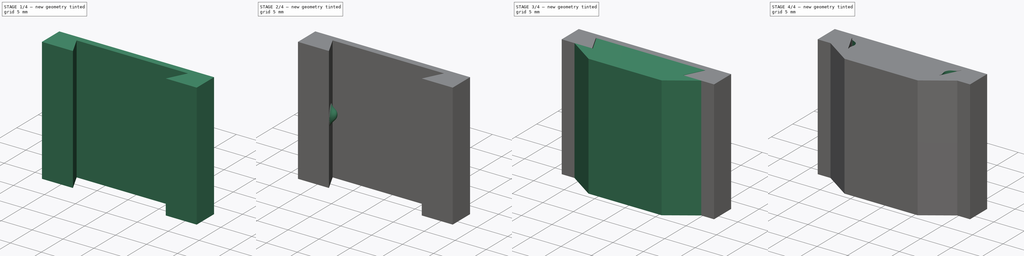
[diagram: build sequence overview — one tinted view per stage of 4, left to right]
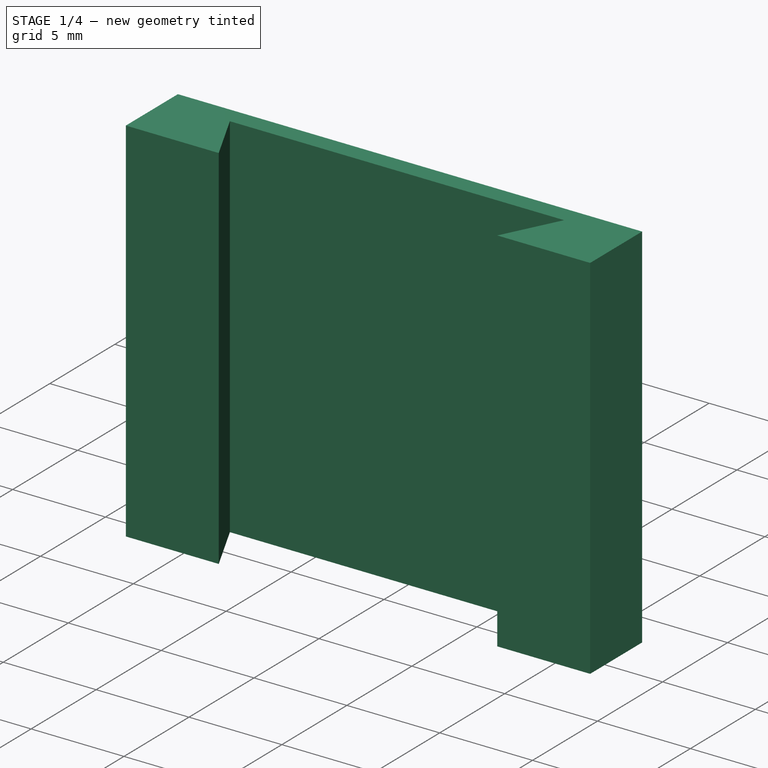
[diagram: stage 1 of 4 — iso view after this stage's code; geometry added in this stage tinted green]
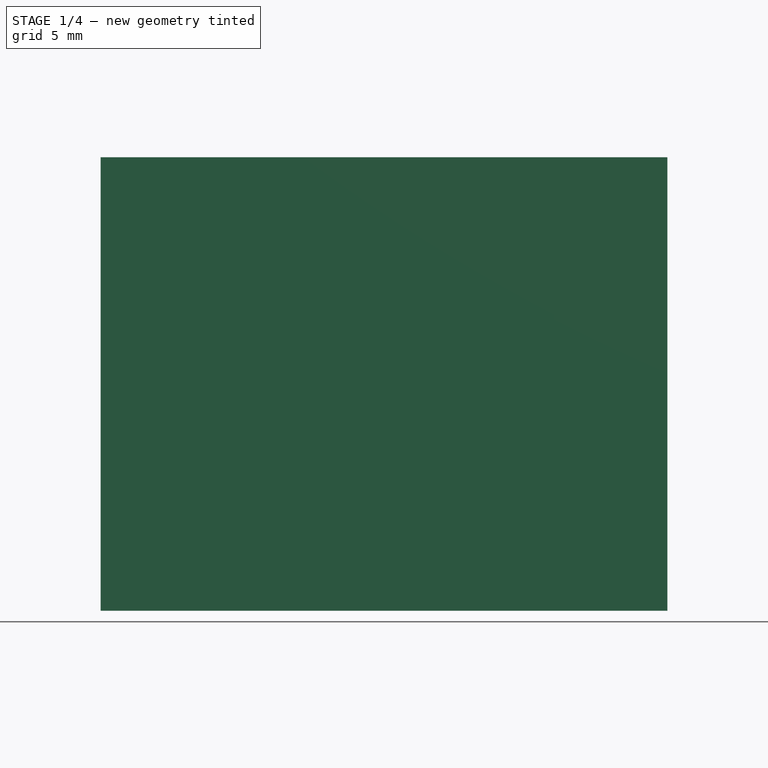
[diagram: stage 1 of 4 — front view after this stage's code; geometry added in this stage tinted green]
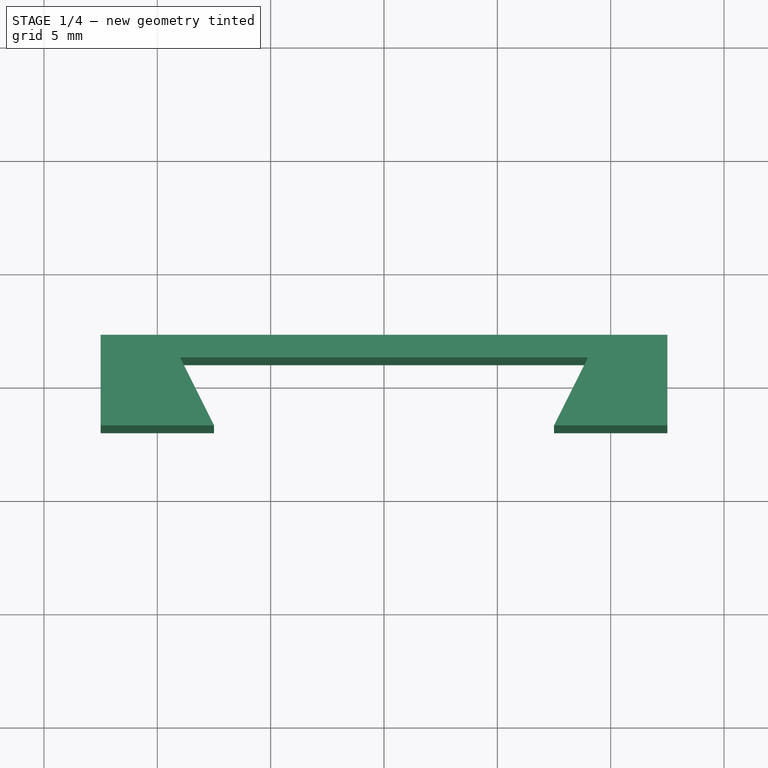
[diagram: stage 1 of 4 — top view after this stage's code; geometry added in this stage tinted green]
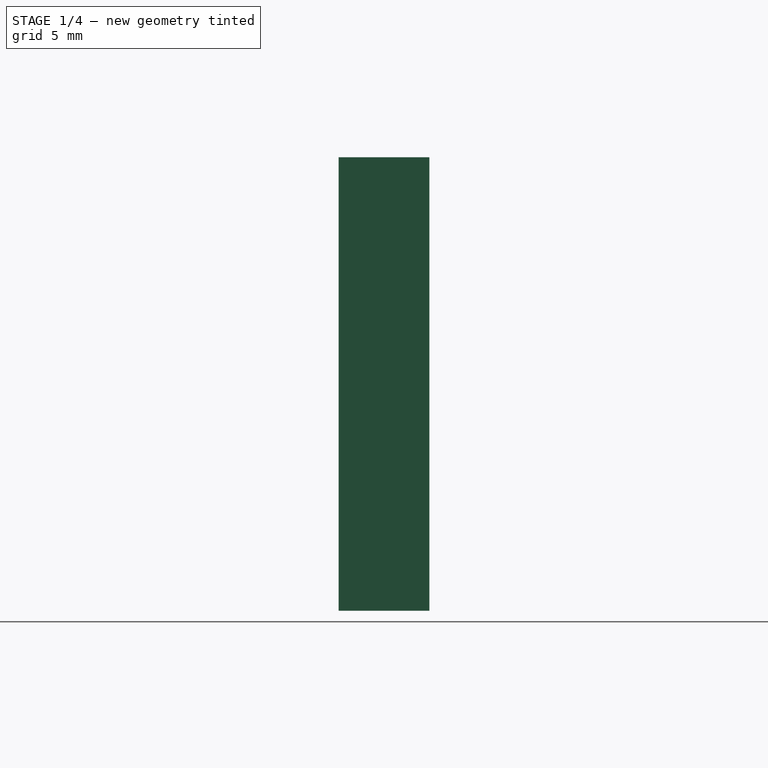
[diagram: stage 1 of 4 — right view after this stage's code; geometry added in this stage tinted green]
FCSTD DOCUMENT  (FreeCAD 0.18R4 (GitTag))
Label: V2_Blocker_Endpoint
License: All rights reserved
LicenseURL: http://en.wikipedia.org/wiki/All_rights_reserved
objects: Sketcher::SketchObject×6, PartDesign::Plane×3, PartDesign::Mirrored×3, PartDesign::Pad×2, PartDesign::Pocket×2, PartDesign::Body×2, PartDesign::Revolution×1, PartDesign::Groove×1
note: 26 computed .brp shape members not serialized (recipe doc carries the construction recipe); baked Part::Feature solids carry a one-line shape summary decoded from their .brp

FEATURE [Sketcher::SketchObject] Sketch
  MapMode = 5
  Support = -> [XY_Plane]
  sketch-geometry (4):
    g0: LineSegment StartX=-12.5 StartY=2 StartZ=0 EndX=12.5 EndY=2 EndZ=0
    g1: LineSegment StartX=12.5 StartY=2 StartZ=0 EndX=12.5 EndY=-2 EndZ=0
    g2: LineSegment StartX=12.5 StartY=-2 StartZ=0 EndX=-12.5 EndY=-2 EndZ=0
    g3: LineSegment StartX=-12.5 StartY=-2 StartZ=0 EndX=-12.5 EndY=2 EndZ=0
  constraints (10):
    c: Coincident(g0,g1)
    c: Coincident(g1,g2)
    c: Coincident(g2,g3)
    c: Coincident(g3,g0)
    c: Horizontal(g2)
    c: Vertical(g1)
    c: DistanceY(g1,g1) = 4
    c: DistanceX(g0,g0) = 25
    c: Symmetric(g2,g0,g-1)
    c: Symmetric(g0,g0,g-2)
FEATURE [PartDesign::Pad] Pad
  Length = 20
  Length2 = 100
  Profile = -> Sketch
  Type = 0
FEATURE [Sketcher::SketchObject] Sketch001
  MapMode = 5
  Placement = pos=(0,0,20) rot=(0,0,1;0rad)
  Support = -> [Pad]
  sketch-geometry (4):
    g0: LineSegment StartX=-9 StartY=1 StartZ=0 EndX=-7.5 EndY=-2 EndZ=0
    g1: LineSegment StartX=-7.5 StartY=-2 StartZ=0 EndX=7.5 EndY=-2 EndZ=0
    g2: LineSegment StartX=7.5 StartY=-2 StartZ=0 EndX=9 EndY=1 EndZ=0
    g3: LineSegment StartX=9 StartY=1 StartZ=0 EndX=-9 EndY=1 EndZ=0
  constraints (11):
    c: Coincident(g0,g1)
    c: Coincident(g1,g2)
    c: Coincident(g2,g3)
    c: Coincident(g3,g0)
    c: Horizontal(g1)
    c: Equal(g2,g0)
    c: DistanceY(g0,g0) = 3
    c: DistanceY(g0,g-1) = 2
    c: Symmetric(g2,g0,g-2)
    c: DistanceX(g3,g3) = 18
    c: DistanceX(g1,g1) = 15
FEATURE [PartDesign::Pocket] Pocket
  BaseFeature = -> Pad
  Length = 20
  Length2 = 100
  Profile = -> Sketch001
  Type = 0
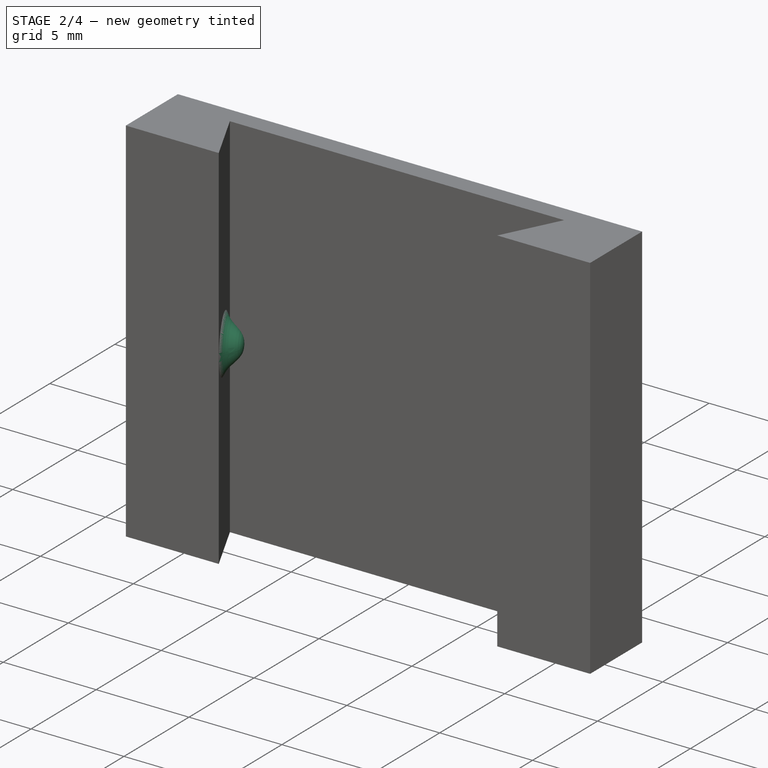
[diagram: stage 2 of 4 — iso view after this stage's code; geometry added in this stage tinted green]
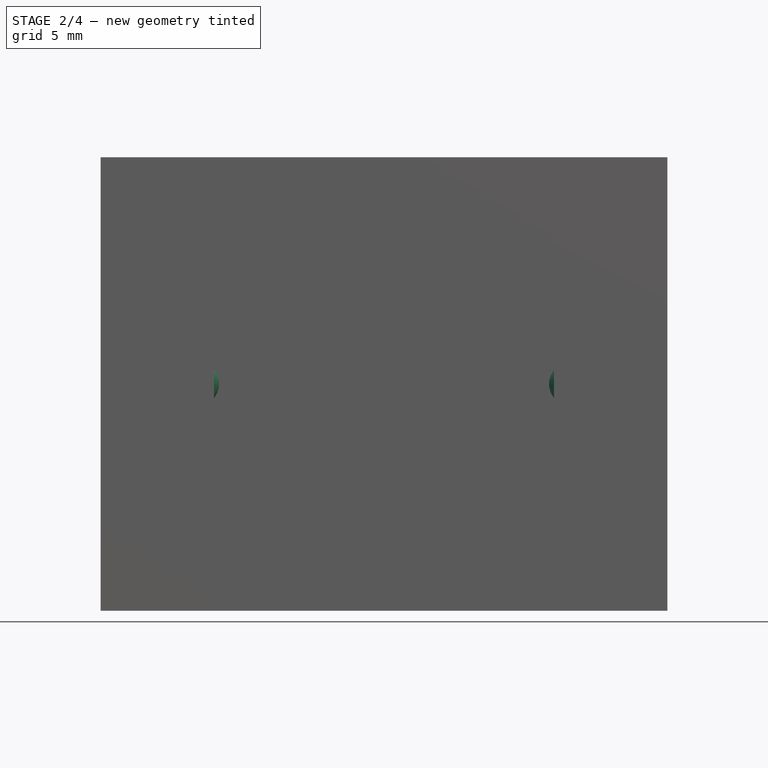
[diagram: stage 2 of 4 — front view after this stage's code; geometry added in this stage tinted green]
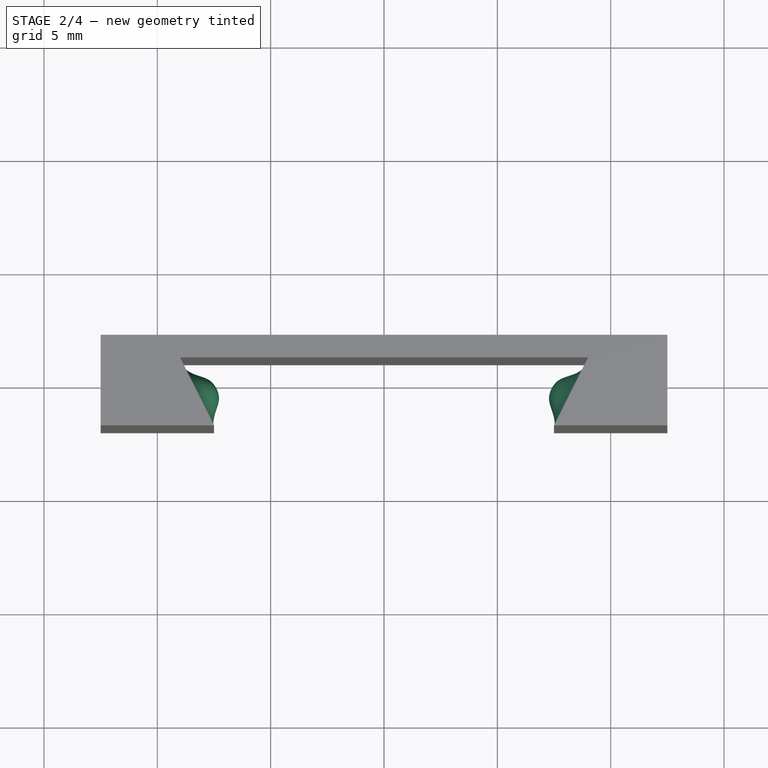
[diagram: stage 2 of 4 — top view after this stage's code; geometry added in this stage tinted green]
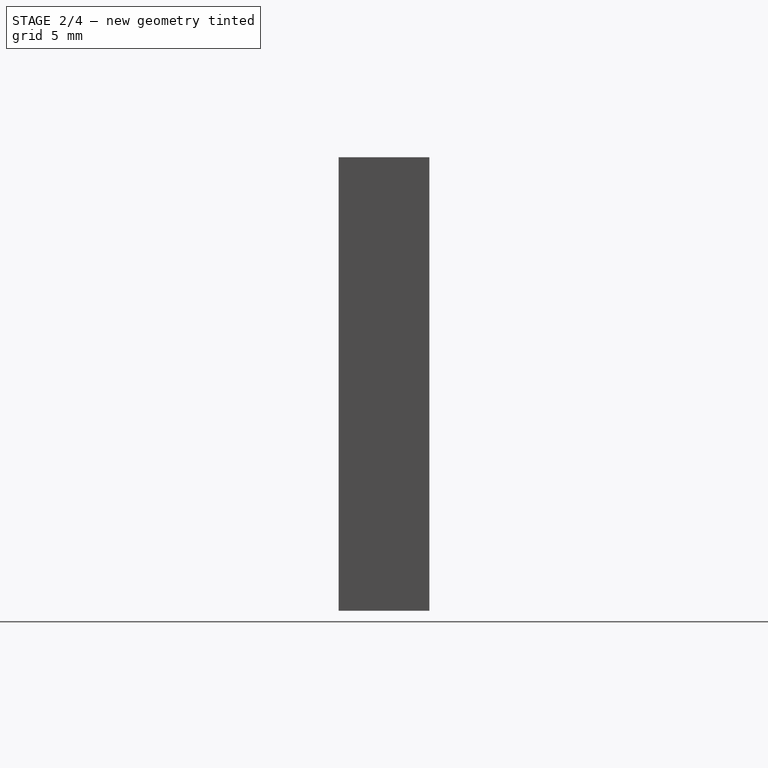
[diagram: stage 2 of 4 — right view after this stage's code; geometry added in this stage tinted green]
FEATURE [PartDesign::Plane] DatumPlane
  AttachmentOffset = pos=(0,10,0) rot=(1,0,0;1.5708rad)
  Length = 35.1021
  MapMode = 5
  Placement = pos=(-6.8,-3.4,10) rot=(0.525731,0.850651,0;3.14159rad)
  ResizeMode = 0
  Support = -> [Pocket]
  Width = 37.3382
FEATURE [Sketcher::SketchObject] Sketch002
  ExternalGeometry = -> [Pocket]
  MapMode = 5
  Placement = pos=(-6.8,-3.4,10) rot=(0.525731,0.850651,0;3.14159rad)
  Support = -> [DatumPlane]
  sketch-geometry (9):
    g0: LineSegment StartX=1.61935 StartY=4.4e-15 StartZ=0 EndX=3.11935 EndY=4.4e-15 EndZ=0
    g1: LineSegment StartX=3.11935 StartY=4.4e-15 StartZ=0 EndX=3.11935 EndY=0.9 EndZ=0
    g2-g5: Circle [constr] x4 (B-spline internal-alignment scaffolding for g6; pole/knot coordinates omitted)
    g6: BSplineCurve PolesCount=4 KnotsCount=2 Degree=3 IsPeriodic=0
    g7: GeomPoint [constr] X=3.11935 Y=0.9 Z=0
    g8: GeomPoint [constr] X=1.61935 Y=4.4e-15 Z=0
  constraints (20):
    c: Horizontal(g0)
    c: Coincident(g0,g1)
    c: Vertical(g1)
    c: DistanceX(g0,g0) = 1.5
    c: DistanceY(g1,g1) = 0.9
    c: Coincident(g6,g1)
    c: Radius(g2) = 0.1
    c: Equal(g2,g3)
    c: Equal(g2,g4)
    c: Equal(g2,g5)
    c: Coincident(g6,g0)
    c: InternalAlignment(g2-g5 -> g6) x4
    c: InternalAlignment(g7,g6)
    c: InternalAlignment(g8,g6)
    c: Horizontal(g3,g1)
    c: Vertical(g4,g3)
    c: DistanceY(g4,g3) = 0.6
    c: DistanceX(g4,g0) = 0.75
    c: DistanceY(g-3,g0) = 0
    c: DistanceX(g0,g-3) = 1.8
FEATURE [PartDesign::Revolution] Revolution
  Angle = 360
  Axis = (0.894427,0.447214,1e-16)
  Base = (-8.19502,-0.609969,10)
  BaseFeature = -> Pocket
  Profile = -> Sketch002
  ReferenceAxis = -> Sketch002 [Edge2]
FEATURE [PartDesign::Body] Body001  label="Connector"
  Group = -> [Sketch004,Pad001,DatumPlane002,Sketch005,Groove,Mirrored,DatumPlane003,Sketch007,Pocket001,Mirrored001]
  Origin = -> Origin001
  Tip = -> Mirrored001
FEATURE [PartDesign::Mirrored] Mirrored002
  BaseFeature = -> Revolution
  MirrorPlane = -> YZ_Plane
  Originals = -> [Revolution]
FEATURE [PartDesign::Body] Body  label="Connector Hole"
  Group = -> [Sketch,Pad,Sketch001,Pocket,DatumPlane,Sketch002,Revolution,Mirrored002]
  Origin = -> Origin
  Tip = -> Mirrored002
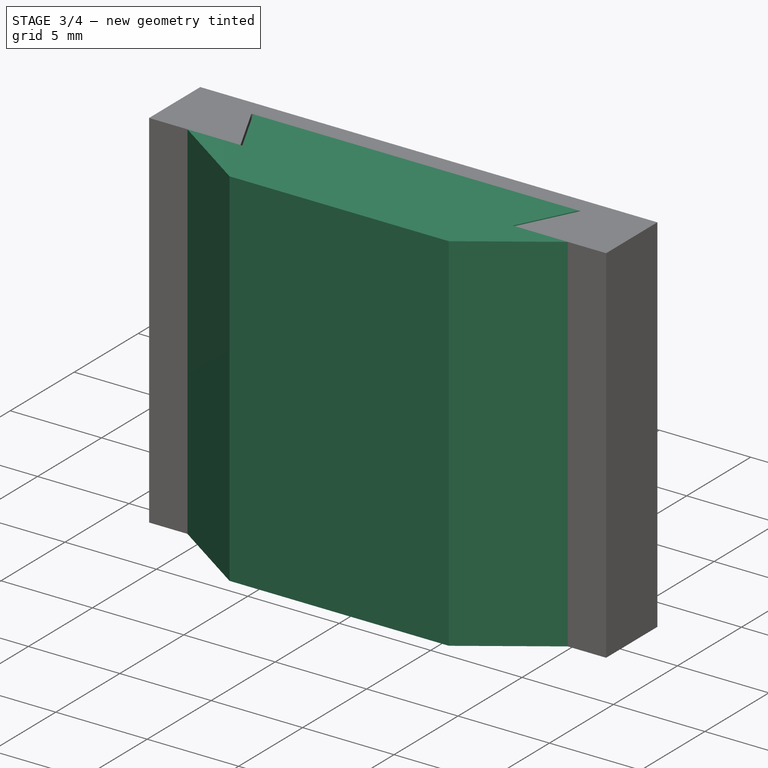
[diagram: stage 3 of 4 — iso view after this stage's code; geometry added in this stage tinted green]
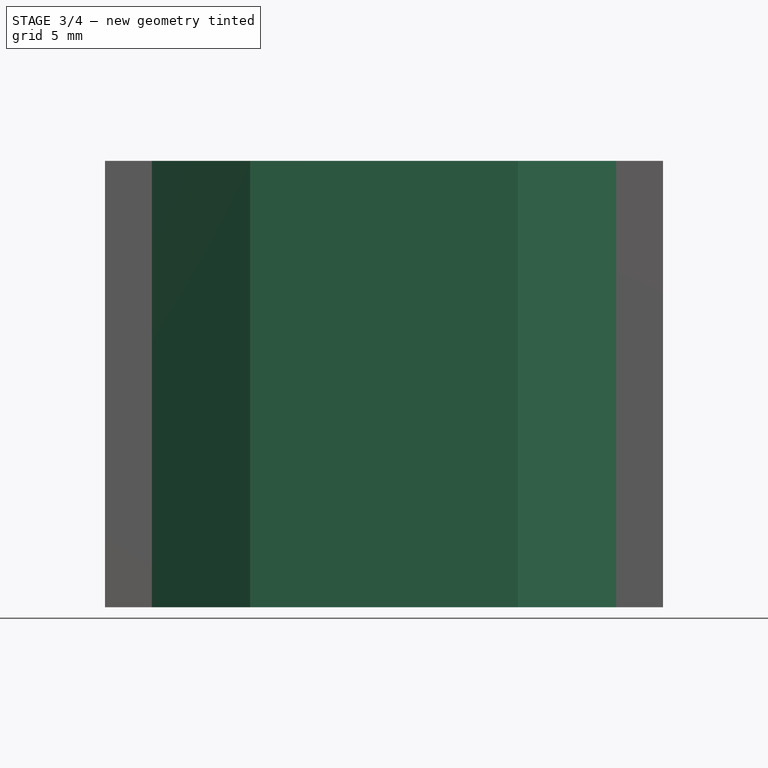
[diagram: stage 3 of 4 — front view after this stage's code; geometry added in this stage tinted green]
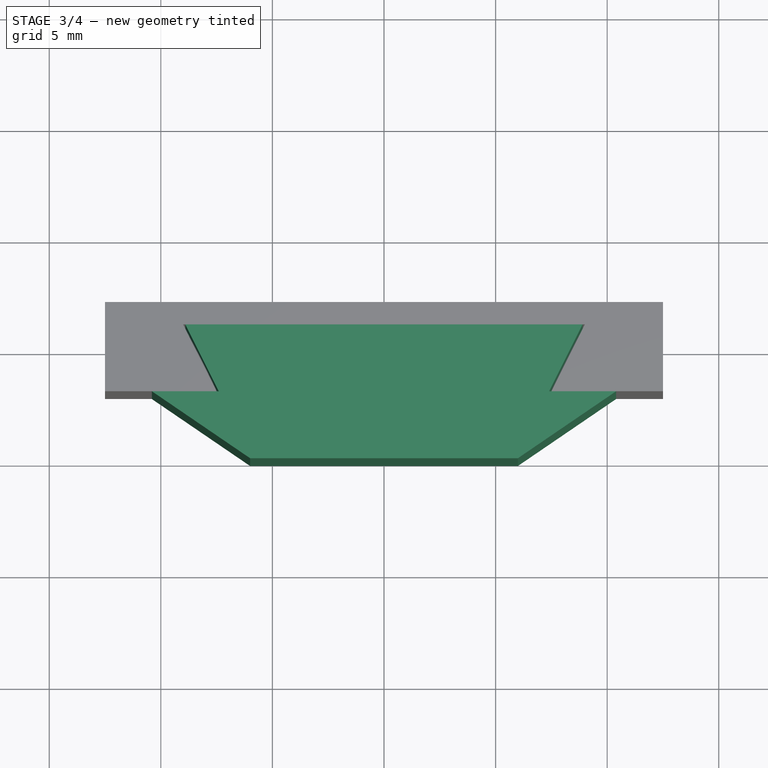
[diagram: stage 3 of 4 — top view after this stage's code; geometry added in this stage tinted green]
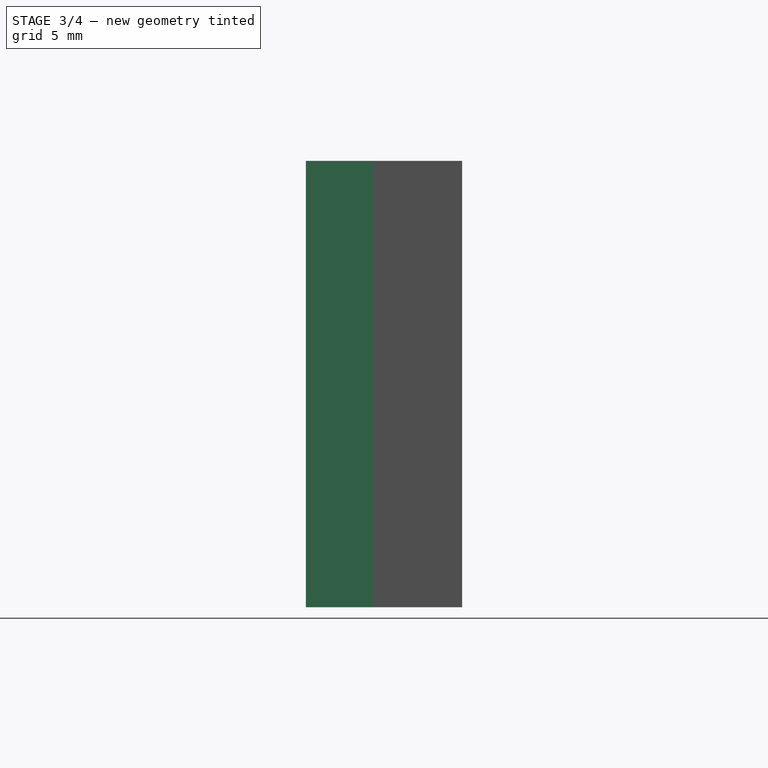
[diagram: stage 3 of 4 — right view after this stage's code; geometry added in this stage tinted green]
FEATURE [Sketcher::SketchObject] Sketch004
  MapMode = 5
  Support = -> [XY_Plane001]
  sketch-geometry (8):
    g0: LineSegment StartX=-8.9 StartY=1 StartZ=0 EndX=-7.4 EndY=-2 EndZ=0
    g1: LineSegment StartX=7.4 StartY=-2 StartZ=0 EndX=8.9 EndY=1 EndZ=0
    g2: LineSegment StartX=8.9 StartY=1 StartZ=0 EndX=-8.9 EndY=1 EndZ=0
    g3: LineSegment StartX=-7.4 StartY=-2 StartZ=0 EndX=-10.4 EndY=-2 EndZ=0
    g4: LineSegment StartX=-10.4 StartY=-2 StartZ=0 EndX=-6 EndY=-5 EndZ=0
    g5: LineSegment StartX=-6 StartY=-5 StartZ=0 EndX=6 EndY=-5 EndZ=0
    g6: LineSegment StartX=6 StartY=-5 StartZ=0 EndX=10.4 EndY=-2 EndZ=0
    g7: LineSegment StartX=10.4 StartY=-2 StartZ=0 EndX=7.4 EndY=-2 EndZ=0
  constraints (23):
    c: Coincident(g1,g2)
    c: Coincident(g2,g0)
    c: DistanceX(g2,g2) = 17.8
    c: DistanceX(g0,g1) = 14.8
    c: Equal(g0,g1)
    c: DistanceY(g1,g1) = 3
    c: Symmetric(g0,g1,g-2)
    c: DistanceY(g0,g-1) = 2
    c: Coincident(g0,g3)
    c: Horizontal(g3)
    c: Coincident(g3,g4)
    c: Coincident(g4,g5)
    c: Horizontal(g5)
    c: Coincident(g5,g6)
    c: Coincident(g6,g7)
    c: Coincident(g7,g1)
    c: Horizontal(g7)
    c: DistanceX(g5,g5) = 12
    c: DistanceY(g4,g0) = 3
    c: DistanceY(g0,g0) = 3
    c: Equal(g6,g4)
    c: Equal(g3,g7)
    c: DistanceX(g3,g3) = 3
FEATURE [PartDesign::Pad] Pad001
  Length = 20
  Length2 = 100
  Profile = -> Sketch004
  Type = 0
FEATURE [PartDesign::Plane] DatumPlane002
  AttachmentOffset = pos=(0,10,0) rot=(1,0,0;1.5708rad)
  Length = 32.6644
  MapMode = 5
  Placement = pos=(6.72,-3.36,10) rot=(0.850651,0.525731,0;3.14159rad)
  ResizeMode = 0
  Support = -> [Pad001]
  Width = 33.0221
FEATURE [Sketcher::SketchObject] Sketch005
  ExternalGeometry = -> [Pad001]
  MapMode = 5
  Placement = pos=(6.72,-3.36,10) rot=(0.850651,0.525731,0;3.14159rad)
  Support = -> [DatumPlane002]
  sketch-geometry (9):
    g0: LineSegment StartX=1.62053 StartY=-4.4e-15 StartZ=0 EndX=3.12053 EndY=-4.4e-15 EndZ=0
    g1: LineSegment StartX=3.12053 StartY=-4.4e-15 StartZ=0 EndX=3.12053 EndY=-1.3 EndZ=0
    g2-g5: Circle [constr] x4 (B-spline internal-alignment scaffolding for g6; pole/knot coordinates omitted)
    g6: BSplineCurve PolesCount=4 KnotsCount=2 Degree=3 IsPeriodic=0
    g7: GeomPoint [constr] X=3.12053 Y=-1.3 Z=0
    g8: GeomPoint [constr] X=1.62053 Y=-4.4e-15 Z=0
  constraints (20):
    c: Horizontal(g0)
    c: Coincident(g0,g1)
    c: Vertical(g1)
    c: DistanceY(g1,g1) = 1.3
    c: DistanceX(g0,g0) = 1.5
    c: DistanceX(g-3,g0) = 1.6
    c: DistanceY(g0,g-3) = 0
    c: Coincident(g6,g1)
    c: Radius(g2) = 0.1
    c: Equal(g2,g3)
    c: Equal(g2,g4)
    c: Equal(g2,g5)
    c: Coincident(g6,g0)
    c: InternalAlignment(g2-g5 -> g6) x4
    c: InternalAlignment(g7,g6)
    c: InternalAlignment(g8,g6)
    c: Horizontal(g3,g1)
    c: Vertical(g3,g4)
    c: DistanceY(g3,g4) = 0.6
    c: DistanceX(g4,g0) = 0.75
FEATURE [PartDesign::Groove] Groove
  Angle = 360
  Axis = (-0.894427,0.447214,1e-16)
  Base = (8.11554,-0.568916,10)
  BaseFeature = -> Pad001
  Profile = -> Sketch005
  ReferenceAxis = -> Sketch005 [Edge2]
FEATURE [PartDesign::Mirrored] Mirrored
  BaseFeature = -> Groove
  MirrorPlane = -> YZ_Plane001
  Originals = -> [Groove]
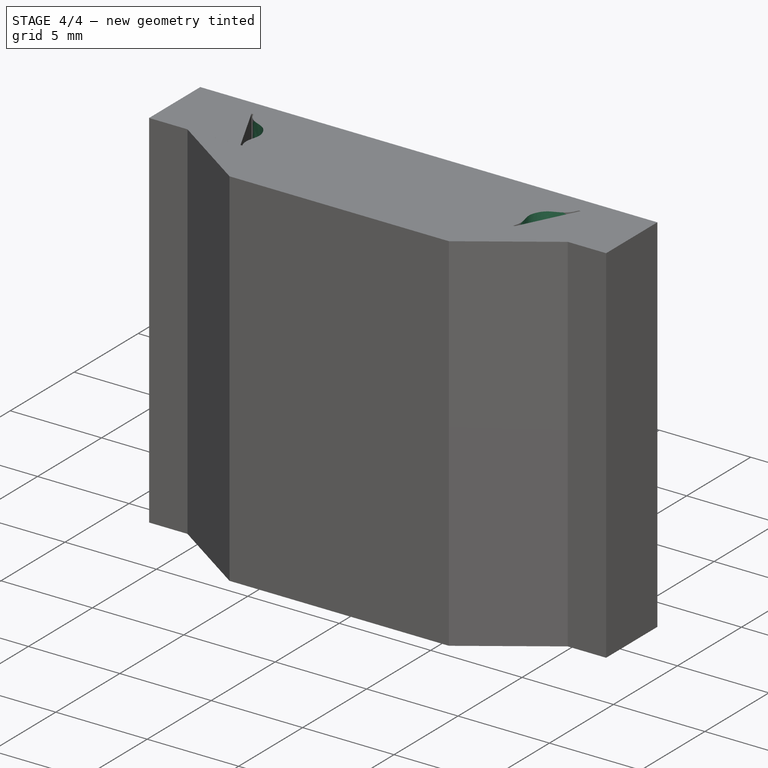
[diagram: stage 4 of 4 — iso view after this stage's code; geometry added in this stage tinted green]
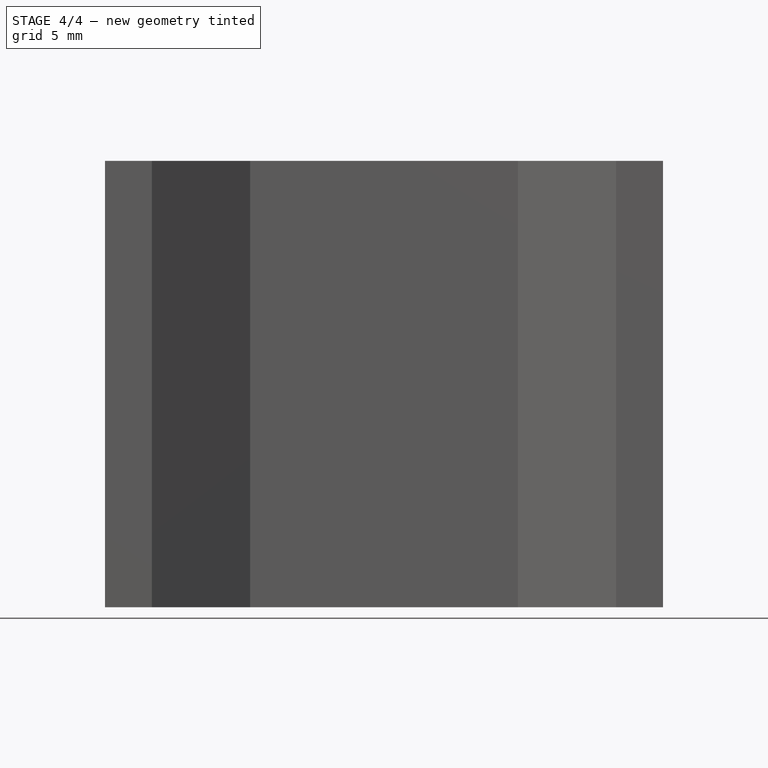
[diagram: stage 4 of 4 — front view after this stage's code; geometry added in this stage tinted green]
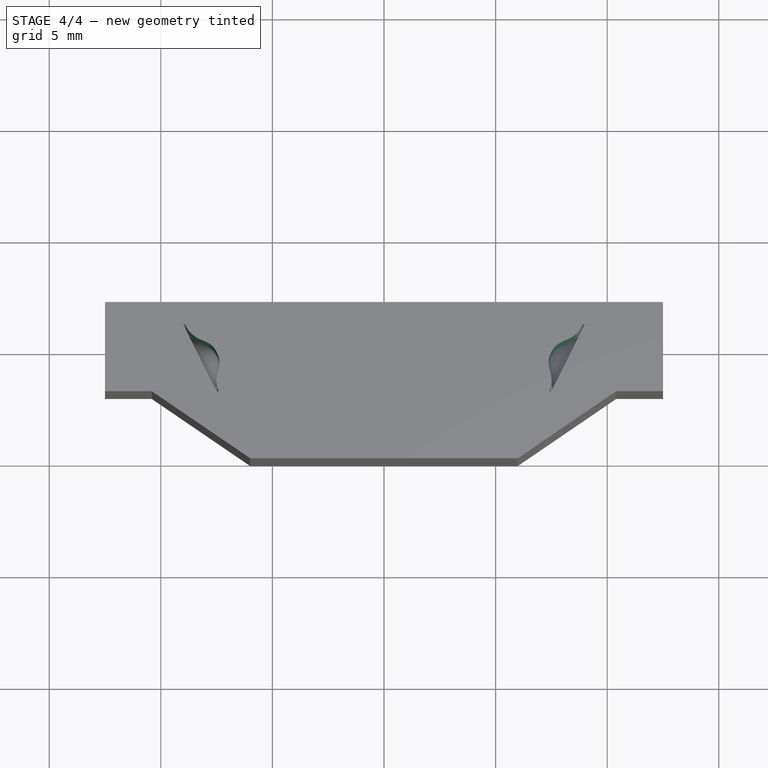
[diagram: stage 4 of 4 — top view after this stage's code; geometry added in this stage tinted green]
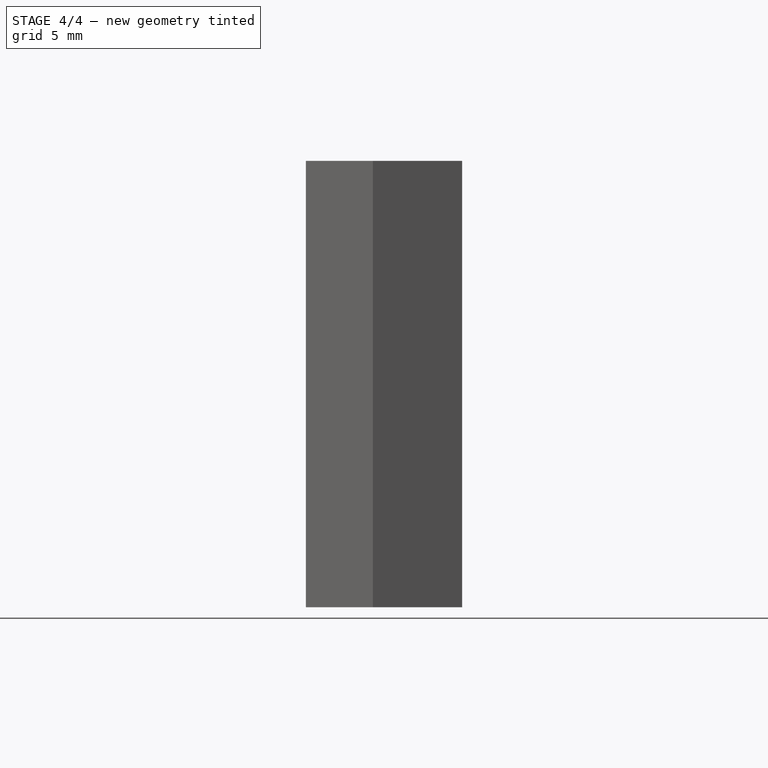
[diagram: stage 4 of 4 — right view after this stage's code; geometry added in this stage tinted green]
FEATURE [PartDesign::Plane] DatumPlane003
  AttachmentOffset = pos=(0,0,0) rot=(1,0,0;1.5708rad)
  Length = 32.6644
  MapMode = 5
  Placement = pos=(-6.72,-3.36,0) rot=(0.850651,-0.525731,0;3.14159rad)
  ResizeMode = 0
  Support = -> [Mirrored]
  Width = 33.0221
FEATURE [Sketcher::SketchObject] Sketch007
  ExternalGeometry = -> [Mirrored]
  MapMode = 5
  Placement = pos=(-6.72,-3.36,0) rot=(0.850651,-0.525731,0;3.14159rad)
  Support = -> [DatumPlane003]
  sketch-geometry (16):
    g0: LineSegment StartX=-4.62053 StartY=-4.4e-15 StartZ=0 EndX=-3.12053 EndY=-4.4e-15 EndZ=0
    g1: LineSegment StartX=-3.12053 StartY=-4.4e-15 StartZ=0 EndX=-1.62053 EndY=-4.4e-15 EndZ=0
    g2-g5: Circle [constr] x4 (B-spline internal-alignment scaffolding for g6; pole/knot coordinates omitted)
    g6: BSplineCurve PolesCount=4 KnotsCount=2 Degree=3 IsPeriodic=0
    g7: GeomPoint [constr] X=-3.12053 Y=-0.7 Z=0
    g8: GeomPoint [constr] X=-4.62053 Y=-4.4e-15 Z=0
    g9-g12: Circle [constr] x4 (B-spline internal-alignment scaffolding for g13; pole/knot coordinates omitted)
    g13: BSplineCurve PolesCount=4 KnotsCount=2 Degree=3 IsPeriodic=0
    g14: GeomPoint [constr] X=-3.12053 Y=-0.7 Z=0
    g15: GeomPoint [constr] X=-1.62053 Y=-4.4e-15 Z=0
  constraints (34):
    c: Horizontal(g0)
    c: Horizontal(g1)
    c: DistanceY(g6,g0) = 0.7
    c: Radius(g2) = 0.1
    c: Equal(g2,g3)
    c: Equal(g2,g4)
    c: Equal(g2,g5)
    c: Coincident(g6,g0)
    c: InternalAlignment(g2-g5 -> g6) x4
    c: InternalAlignment(g7,g6)
    c: InternalAlignment(g8,g6)
    c: Horizontal(g3,g6)
    c: Vertical(g3,g4)
    c: DistanceY(g3,g4) = 0.6
    c: DistanceX(g4,g0) = 0.75
    c: Radius(g9) = 0.09
    c: Equal(g9,g10)
    c: Equal(g9,g11)
    c: Equal(g9,g12)
    c: Coincident(g13,g1)
    c: InternalAlignment(g9-g12 -> g13) x4
    c: InternalAlignment(g14,g13)
    c: InternalAlignment(g15,g13)
    c: Horizontal(g6,g10)
    c: Vertical(g11,g10)
    c: Horizontal(g11,g4)
    c: DistanceX(g0,g11) = 0.75
    c: DistanceX(g0,g-3) = 1.6
    c: DistanceY(g-3,g0) = 0
    c: Coincident(g6,g13)
    c: DistanceX(g0,g0) = 1.5
    c: Equal(g0,g1)
    c: DistanceX(g0,g6) = 1.5
    c: Coincident(g1,g0)
FEATURE [PartDesign::Pocket] Pocket001
  BaseFeature = -> Mirrored
  Length = 5
  Length2 = 100
  Profile = -> Sketch007
  Type = 1
FEATURE [PartDesign::Mirrored] Mirrored001
  BaseFeature = -> Pocket001
  MirrorPlane = -> YZ_Plane001
  Originals = -> [Pocket001]
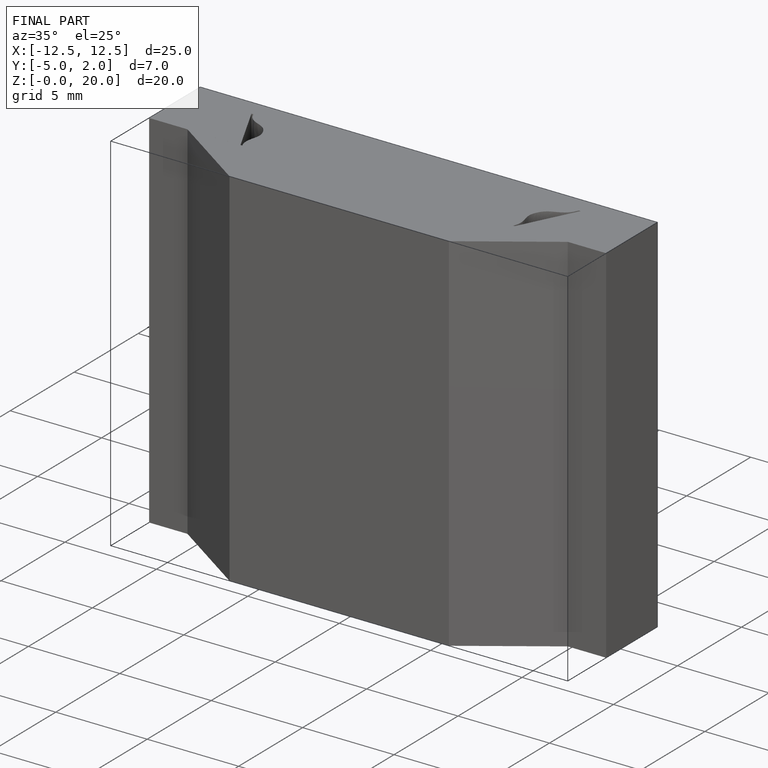
[diagram: finished part — iso view with bounding-box wireframe]
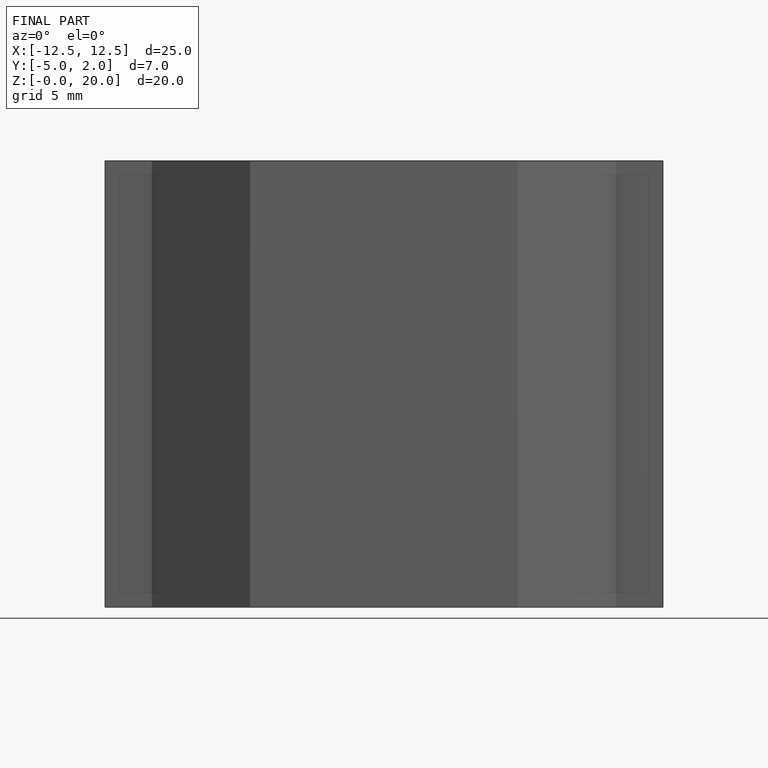
[diagram: finished part — front view with bounding-box wireframe]
